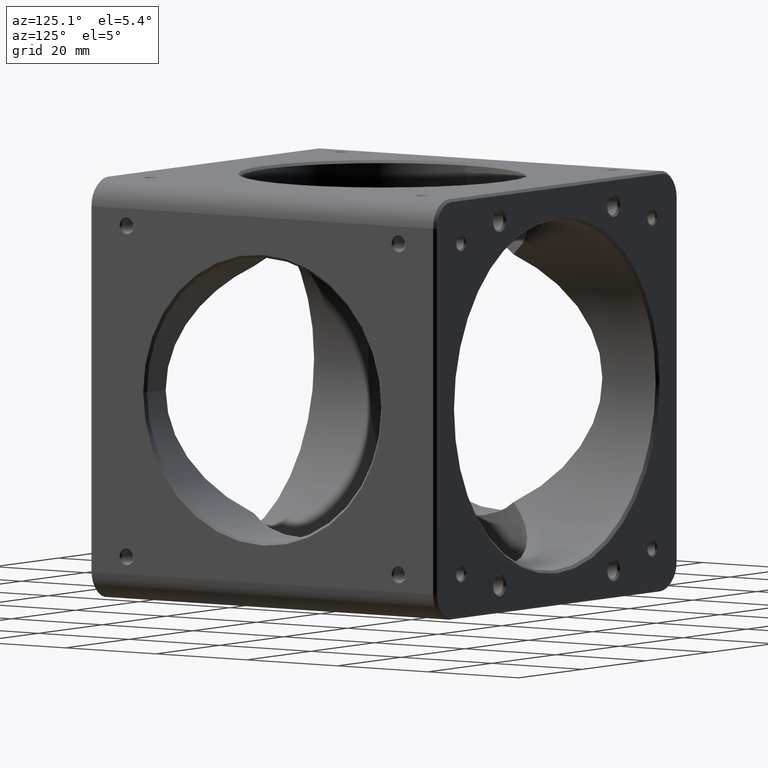
[diagram: clean part render]
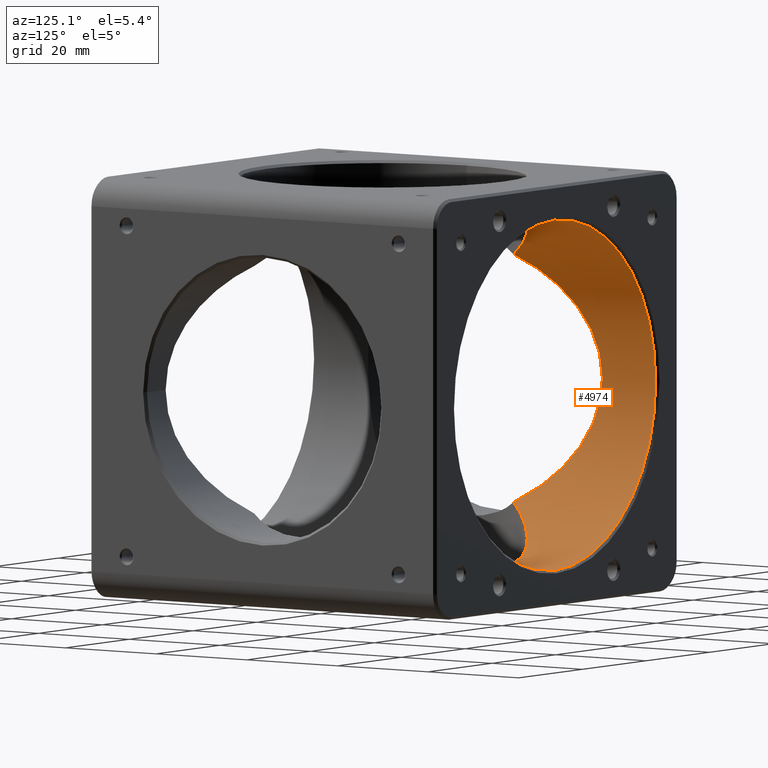
[diagram: same view with one face highlighted and labeled with its STEP entity id]
A machine part, auxiliary view. The second image highlights one B-rep face of the part: STEP entity #4974.
In plain terms, the highlighted cylindrical surface (partial cylindrical patch) has radius 31.75 mm, axis along (-0, 1, -0).
Its self-contained STEP definition (entity closure, byte-faithful):
#12 = CARTESIAN_POINT ( 'NONE',  ( -31.74557741855164750, 25.83956752821650582, -0.6113074955970804192 ) ) ;
#76 = CARTESIAN_POINT ( 'NONE',  ( -24.65065758853571865, 16.35997425321091470, 20.01515885522908533 ) ) ;
#86 = CARTESIAN_POINT ( 'NONE',  ( -17.02751218341095196, 19.47425051086229431, -26.81655745733052143 ) ) ;
#102 = CARTESIAN_POINT ( 'NONE',  ( -31.40791991316456588, 25.42377880451287808, 4.798713425435072288 ) ) ;
#133 = CARTESIAN_POINT ( 'NONE',  ( -15.73559615041370385, 20.50998984812260417, -27.58086057478472952 ) ) ;
#166 = CARTESIAN_POINT ( 'NONE',  ( -21.32005843994131666, 14.64801314957966483, 23.54215953929517013 ) ) ;
#174 = CARTESIAN_POINT ( 'NONE',  ( -9.331343820604567796, 24.10875852542507403, -30.35319228098047972 ) ) ;
#189 = CARTESIAN_POINT ( 'NONE',  ( -16.60611924818093144, 19.81176391541012549, 27.06566093436638809 ) ) ;
#232 = CARTESIAN_POINT ( 'NONE',  ( -12.49420688565798265, 22.65198967103243177, 29.20738749243578525 ) ) ;
#268 = CARTESIAN_POINT ( 'NONE',  ( -9.351178390692838960, 24.10111157733373943, 30.34711645161839044 ) ) ;
#400 = ORIENTED_EDGE ( 'NONE', *, *, #2697, .F. ) ;
#437 = CARTESIAN_POINT ( 'NONE',  ( -31.18283235845020940, 25.14509912831195848, -6.003727197645441827 ) ) ;
#449 = CARTESIAN_POINT ( 'NONE',  ( 3.890643799501251129E-15, 25.84499999999999886, -31.74999999999999289 ) ) ;
#504 = CARTESIAN_POINT ( 'NONE',  ( -23.53638018001869270, 14.63901919373566507, 21.32677605334111703 ) ) ;
#554 = CARTESIAN_POINT ( 'NONE',  ( -7.672879701568225741, 24.68679576277738619, -30.81439668890284267 ) ) ;
#568 = B_SPLINE_CURVE_WITH_KNOTS ( 'NONE', 3,
 ( #4150, #1833, #3725, #4586, #893, #4569, #5050, #2746, #4189, #3224, #5687, #4666, #5185, #2398, #6134, #5209, #2812, #3280, #437, #3762, #6113, #1954, #5664, #4263, #925, #12, #1455, #3333 ),
 .UNSPECIFIED., .F., .F.,
 ( 4, 2, 2, 2, 2, 2, 2, 2, 2, 2, 2, 2, 2, 4 ),
 ( 0.1426913864351759265, 0.1462891665683608566, 0.1498869467015457591, 0.1516858367681382103, 0.1534847268347306892, 0.1570825069679155916, 0.1588813970345080151, 0.1606802871011004663, 0.1642780672342853687, 0.1660769573008778199, 0.1678758473674702434, 0.1696747374340626946, 0.1705741824673589202, 0.1714736275006551458 ),
 .UNSPECIFIED. ) ;
#571 = CARTESIAN_POINT ( 'NONE',  ( -25.20325520636562899, 17.18132448374358390, 19.31469467918383032 ) ) ;
#628 = LINE ( 'NONE', #1238, #3141 ) ;
#663 = CARTESIAN_POINT ( 'NONE',  ( -14.40651589955395551, 21.48651068447556156, 28.31305334065573476 ) ) ;
#667 = CARTESIAN_POINT ( 'NONE',  ( 3.888253587292845687E-15, 37.59999999999992326, -31.74999999999999289 ) ) ;
#704 = CARTESIAN_POINT ( 'NONE',  ( -9.897202636066174009, 23.88191161807583285, 30.17322445336557024 ) ) ;
#715 = CARTESIAN_POINT ( 'NONE',  ( 3.890643799501251129E-15, 25.84499999999999886, -31.74999999999999289 ) ) ;
#735 = AXIS2_PLACEMENT_3D ( 'NONE', #5347, #1596, #3003 ) ;
#893 = CARTESIAN_POINT ( 'NONE',  ( -25.18910616588382823, 17.16694512655780969, -19.35021325873607267 ) ) ;
#925 = CARTESIAN_POINT ( 'NONE',  ( -31.72799318232459598, 25.81796110822155654, -1.220586381127175546 ) ) ;
#946 = VERTEX_POINT ( 'NONE', #715 ) ;
#1040 = VERTEX_POINT ( 'NONE', #1313 ) ;
#1090 = CARTESIAN_POINT ( 'NONE',  ( -17.82971391650218962, 18.74108564118768783, -26.28722904794143744 ) ) ;
#1114 = CARTESIAN_POINT ( 'NONE',  ( -8.231001871842035911, 24.50626090045814820, -30.66986904651275125 ) ) ;
#1139 = CARTESIAN_POINT ( 'NONE',  ( -11.46757694500279001, 23.19058222819290904, -29.62801371447835663 ) ) ;
#1161 = CYLINDRICAL_SURFACE ( 'NONE', #4710, 31.75000000000000000 ) ;
#1214 = CARTESIAN_POINT ( 'NONE',  ( -22.45064030267286626, 12.80362351055353543, -22.45064030267289468 ) ) ;
#1228 = CARTESIAN_POINT ( 'NONE',  ( -3.025589438624887606, 25.67442728759290560, 31.61126741895111536 ) ) ;
#1238 = CARTESIAN_POINT ( 'NONE',  ( 0.0000000000000000000, -38.10000000000000853, 31.75000000000000711 ) ) ;
#1248 = CARTESIAN_POINT ( 'NONE',  ( -22.45064030267287691, 12.80362351055357450, 22.45064030267290178 ) ) ;
#1293 = EDGE_CURVE ( 'NONE', #946, #3278, #3342, .T. ) ;
#1313 = CARTESIAN_POINT ( 'NONE',  ( -22.45064030267286626, 12.80362351055353543, -22.45064030267289468 ) ) ;
#1442 = CARTESIAN_POINT ( 'NONE',  ( -22.98493869471641204, 13.74049431155596501, 21.91634191062936665 ) ) ;
#1455 = CARTESIAN_POINT ( 'NONE',  ( -31.75000000000000711, 25.84499999999999531, -0.3048629228592948937 ) ) ;
#1596 = DIRECTION ( 'NONE',  ( 0.0000000000000000000, 1.000000000000000000, 0.0000000000000000000 ) ) ;
#1668 = DIRECTION ( 'NONE',  ( -0.0000000000000000000, 1.000000000000000000, -0.0000000000000000000 ) ) ;
#1699 = CARTESIAN_POINT ( 'NONE',  ( 4.961947715614647792E-20, 25.84499999999999886, 31.75000000000000711 ) ) ;
#1833 = CARTESIAN_POINT ( 'NONE',  ( -22.98737391121697726, 13.74476436601895024, -21.91390669412879078 ) ) ;
#1941 = CARTESIAN_POINT ( 'NONE',  ( -30.66518061214475566, 24.50039439633872718, 8.248455638101575005 ) ) ;
#1954 = CARTESIAN_POINT ( 'NONE',  ( -31.61007973371322777, 25.67296567477916369, -3.038372077861752452 ) ) ;
#1983 = CARTESIAN_POINT ( 'NONE',  ( -20.02602712237349891, 16.37332523240596061, -24.65255009712480572 ) ) ;
#2002 = CARTESIAN_POINT ( 'NONE',  ( -15.29038962417075886, 20.84412521132712470, -27.83041526865778437 ) ) ;
#2018 = B_SPLINE_CURVE_WITH_KNOTS ( 'NONE', 3,
 ( #2104, #5390, #166, #5893, #3935, #2562, #3018, #4389, #189, #3502, #663, #232, #3546, #704, #268, #3095, #5912, #5451, #4978, #1228, #2172, #4499, #2646, #1699 ),
 .UNSPECIFIED., .F., .F.,
 ( 4, 2, 2, 2, 2, 2, 2, 2, 2, 2, 2, 4 ),
 ( 0.01405118284760461730, 0.01767536608136888523, 0.02129954931513315664, 0.02311164093201528713, 0.02492373254889741763, 0.02854791578266168556, 0.03217209901642595349, 0.03398419063330808398, 0.03579628225019021448, 0.03942046548395448241, 0.04123255710083661291, 0.04304464871771874340 ),
 .UNSPECIFIED. ) ;
#2051 = CARTESIAN_POINT ( 'NONE',  ( -19.32899918866503342, 17.19060149381717650, -25.20529507321495188 ) ) ;
#2104 = CARTESIAN_POINT ( 'NONE',  ( -22.45064030267287691, 12.80362351055357450, 22.45064030267290178 ) ) ;
#2172 = CARTESIAN_POINT ( 'NONE',  ( -2.416692140556045754, 25.73890639374301870, 31.66368844166058594 ) ) ;
#2230 = ORIENTED_EDGE ( 'NONE', *, *, #1293, .T. ) ;
#2334 = ORIENTED_EDGE ( 'NONE', *, *, #5366, .F. ) ;
#2398 = CARTESIAN_POINT ( 'NONE',  ( -29.60405805035386706, 23.15878395478078744, -11.48735386586078633 ) ) ;
#2420 = CARTESIAN_POINT ( 'NONE',  ( -28.30202799875627306, 21.46975527816497475, 14.39870154176403005 ) ) ;
#2489 = ORIENTED_EDGE ( 'NONE', *, *, #4494, .F. ) ;
#2513 = EDGE_LOOP ( 'NONE', ( #2334, #2230, #3495, #2489, #400, #4786, #3238 ) ) ;
#2531 = CARTESIAN_POINT ( 'NONE',  ( -12.47423810776848718, 22.66310329660252165, -29.21600564322520555 ) ) ;
#2562 = CARTESIAN_POINT ( 'NONE',  ( -18.21984667237212108, 18.33825821235884135, 26.00601808399796866 ) ) ;
#2646 = CARTESIAN_POINT ( 'NONE',  ( -0.6030113382820280199, 25.84500000000000242, 31.75000000000001421 ) ) ;
#2697 = EDGE_CURVE ( 'NONE', #5605, #4061, #2018, .T. ) ;
#2746 = CARTESIAN_POINT ( 'NONE',  ( -26.80500198953824764, 19.45444821540877101, -17.02317859568271530 ) ) ;
#2764 = DIRECTION ( 'NONE',  ( -0.0000000000000000000, 1.000000000000000000, -0.0000000000000000000 ) ) ;
#2812 = CARTESIAN_POINT ( 'NONE',  ( -30.67443486768114624, 24.51244851248882384, -8.275898834087531242 ) ) ;
#2875 = CARTESIAN_POINT ( 'NONE',  ( -26.28841525642800292, 18.74274399652230727, 17.82795871582191083 ) ) ;
#2914 = CARTESIAN_POINT ( 'NONE',  ( -25.47714876875394907, 17.58020682732187012, 18.95233462615201603 ) ) ;
#2933 = CARTESIAN_POINT ( 'NONE',  ( -31.20692299350272947, 25.17562023141345762, 5.964542473830189095 ) ) ;
#2973 = CARTESIAN_POINT ( 'NONE',  ( 0.0000000000000000000, 37.59999999999992326, 31.75000000000000711 ) ) ;
#3003 = DIRECTION ( 'NONE',  ( 0.0000000000000000000, 0.0000000000000000000, -1.000000000000000000 ) ) ;
#3018 = CARTESIAN_POINT ( 'NONE',  ( -17.83158714638664222, 18.71620872484151832, 26.27412260873524730 ) ) ;
#3026 = DIRECTION ( 'NONE',  ( -0.0000000000000000000, 1.000000000000000000, -0.0000000000000000000 ) ) ;
#3095 = CARTESIAN_POINT ( 'NONE',  ( -8.248086653162880921, 24.50055475126160687, 30.66530744643798201 ) ) ;
#3141 = VECTOR ( 'NONE', #1668, 1000.000000000000000 ) ;
#3184 = DIRECTION ( 'NONE',  ( 0.0000000000000000000, 0.0000000000000000000, 1.000000000000000000 ) ) ;
#3199 = CARTESIAN_POINT ( 'NONE',  ( 0.0000000000000000000, -38.10000000000000853, 6.938893903907228378E-15 ) ) ;
#3224 = CARTESIAN_POINT ( 'NONE',  ( -27.82534590997393664, 20.84146183884763204, -15.32325430562022106 ) ) ;
#3238 = ORIENTED_EDGE ( 'NONE', *, *, #4998, .F. ) ;
#3278 = VERTEX_POINT ( 'NONE', #667 ) ;
#3280 = CARTESIAN_POINT ( 'NONE',  ( -31.06644955921520079, 25.00070451750736211, -6.578407921043935680 ) ) ;
#3333 = CARTESIAN_POINT ( 'NONE',  ( -31.75000000000000000, 25.84499999999998465, 0.0000000000000000000 ) ) ;
#3338 = CARTESIAN_POINT ( 'NONE',  ( -29.21529975740237717, 22.66226005122281606, 12.47675470723141977 ) ) ;
#3342 = LINE ( 'NONE', #4740, #3732 ) ;
#3385 = CARTESIAN_POINT ( 'NONE',  ( -24.37111084454143750, 15.93618870028122281, 20.35421266974014287 ) ) ;
#3407 = CARTESIAN_POINT ( 'NONE',  ( -27.57325328252251140, 20.49973758833558080, 15.74878060295307591 ) ) ;
#3460 = CARTESIAN_POINT ( 'NONE',  ( -20.99704424490763799, 15.07909271459779177, -23.81949842307164644 ) ) ;
#3495 = ORIENTED_EDGE ( 'NONE', *, *, #4893, .T. ) ;
#3502 = CARTESIAN_POINT ( 'NONE',  ( -15.31357399152989807, 20.84895969359013179, 27.83091347407599869 ) ) ;
#3527 = CIRCLE ( 'NONE', #735, 31.75000000000000000 ) ;
#3546 = CARTESIAN_POINT ( 'NONE',  ( -11.48904380758748722, 23.17997169107630029, 29.61970202614241288 ) ) ;
#3725 = CARTESIAN_POINT ( 'NONE',  ( -23.53702289668455805, 14.63974223041835465, -21.32568318022507015 ) ) ;
#3732 = VECTOR ( 'NONE', #3026, 1000.000000000000000 ) ;
#3762 = CARTESIAN_POINT ( 'NONE',  ( -31.38517527013375741, 25.39559416541459669, -4.835757171523686893 ) ) ;
#3777 = CARTESIAN_POINT ( 'NONE',  ( -1.201813558092643675, 25.84500000000000597, -31.75000000000000000 ) ) ;
#3801 = VERTEX_POINT ( 'NONE', #3811 ) ;
#3811 = CARTESIAN_POINT ( 'NONE',  ( -31.75000000000000000, 25.84499999999998465, 0.0000000000000000000 ) ) ;
#3855 = CARTESIAN_POINT ( 'NONE',  ( -31.75000000000000000, 25.84499999999998465, 0.0000000000000000000 ) ) ;
#3935 = CARTESIAN_POINT ( 'NONE',  ( -19.34288749091300375, 17.17494502539863888, 25.19460975910912381 ) ) ;
#3940 = CARTESIAN_POINT ( 'NONE',  ( -21.30896191997118905, 14.63502478706890919, -23.54048222627065812 ) ) ;
#4061 = VERTEX_POINT ( 'NONE', #4170 ) ;
#4150 = CARTESIAN_POINT ( 'NONE',  ( -22.45064030267286626, 12.80362351055353543, -22.45064030267289468 ) ) ;
#4170 = CARTESIAN_POINT ( 'NONE',  ( 4.961947715614647792E-20, 25.84499999999999886, 31.75000000000000711 ) ) ;
#4189 = CARTESIAN_POINT ( 'NONE',  ( -27.06500120650670738, 19.81084546910653899, -16.60709438983511887 ) ) ;
#4245 = CARTESIAN_POINT ( 'NONE',  ( -31.75000000000000000, 25.84499999999998820, 1.224676417933895589 ) ) ;
#4263 = CARTESIAN_POINT ( 'NONE',  ( -31.71483148227369853, 25.80178709859464803, -1.524552251522689694 ) ) ;
#4353 = CARTESIAN_POINT ( 'NONE',  ( -14.37921245456875496, 21.48282616116433630, -28.31194585455517654 ) ) ;
#4389 = CARTESIAN_POINT ( 'NONE',  ( -17.02547200056618593, 19.45238474709340082, 26.80351324315472539 ) ) ;
#4396 = CARTESIAN_POINT ( 'NONE',  ( -21.90184113629728913, 13.73190312612568320, -22.98990031280135327 ) ) ;
#4442 = CARTESIAN_POINT ( 'NONE',  ( -22.18343876235054779, 13.27215069468640785, -22.71784184299520248 ) ) ;
#4494 = EDGE_CURVE ( 'NONE', #4061, #5869, #628, .T. ) ;
#4499 = CARTESIAN_POINT ( 'NONE',  ( -1.206946209193123565, 25.82392270930590072, 31.73283547811145411 ) ) ;
#4569 = CARTESIAN_POINT ( 'NONE',  ( -26.00364790434512940, 18.33491428855539240, -18.22327155906781471 ) ) ;
#4586 = CARTESIAN_POINT ( 'NONE',  ( -24.63779543599862265, 16.35088895687803046, -20.04383311635460174 ) ) ;
#4666 = CARTESIAN_POINT ( 'NONE',  ( -28.97706381268278975, 22.35188379087410837, -12.98731663105711576 ) ) ;
#4710 = AXIS2_PLACEMENT_3D ( 'NONE', #3199, #2764, #3184 ) ;
#4714 = CARTESIAN_POINT ( 'NONE',  ( -22.45064030267287691, 12.80362351055357450, 22.45064030267290178 ) ) ;
#4740 = CARTESIAN_POINT ( 'NONE',  ( 3.888253587292845687E-15, -38.10000000000000853, -31.74999999999999289 ) ) ;
#4751 = CARTESIAN_POINT ( 'NONE',  ( -29.62765759043373492, 23.19010573124798569, 11.46773560243410373 ) ) ;
#4781 = CARTESIAN_POINT ( 'NONE',  ( -30.17652313010645670, 23.88607166016355876, 9.886915106036852308 ) ) ;
#4786 = ORIENTED_EDGE ( 'NONE', *, *, #5413, .F. ) ;
#4792 = CARTESIAN_POINT ( 'NONE',  ( -13.91203883699101240, 21.78838936219238676, -28.54465713450804287 ) ) ;
#4804 = CARTESIAN_POINT ( 'NONE',  ( -31.67942781422959797, 25.75844021026941988, 2.428772771221066051 ) ) ;
#4893 = EDGE_CURVE ( 'NONE', #3278, #5869, #3527, .T. ) ;
#4974 = ADVANCED_FACE ( 'NONE', ( #5879 ), #1161, .F. ) ;
#4978 = CARTESIAN_POINT ( 'NONE',  ( -4.823527408755972523, 25.41973918680195510, 31.40464552373124718 ) ) ;
#4998 = EDGE_CURVE ( 'NONE', #1040, #3801, #568, .T. ) ;
#5050 = CARTESIAN_POINT ( 'NONE',  ( -26.27367877284450870, 18.71559830637246336, -17.83228939034581373 ) ) ;
#5185 = CARTESIAN_POINT ( 'NONE',  ( -29.19234530911510106, 22.63011369529780126, -12.49666064361249518 ) ) ;
#5191 = B_SPLINE_CURVE_WITH_KNOTS ( 'NONE', 3,
 ( #449, #3777, #5746, #5348, #5789, #554, #1114, #174, #5304, #1139, #2531, #4792, #4353, #2002, #133, #86, #1090, #2051, #1983, #3460, #3940, #4396, #4442, #1214 ),
 .UNSPECIFIED., .F., .F.,
 ( 4, 2, 2, 2, 2, 2, 2, 2, 2, 2, 2, 4 ),
 ( 0.1290527732953890006, 0.1326625084167538104, 0.1362722435381186481, 0.1380771110988010530, 0.1398819786594834580, 0.1434917137808482679, 0.1452965813415307006, 0.1471014489022131055, 0.1507111840235779154, 0.1543209191449427253, 0.1561257867056251303, 0.1579306542663075352 ),
 .UNSPECIFIED. ) ;
#5193 = CARTESIAN_POINT ( 'NONE',  ( -30.81147438359403878, 24.68315316707647611, 7.685172328598835811 ) ) ;
#5209 = CARTESIAN_POINT ( 'NONE',  ( -30.35605748890128908, 24.11379323212142012, -9.372269175873704228 ) ) ;
#5232 = B_SPLINE_CURVE_WITH_KNOTS ( 'NONE', 3,
 ( #3855, #4245, #4804, #102, #2933, #5193, #1941, #5763, #4781, #4751, #3338, #5252, #2420, #5695, #3407, #5741, #2875, #2914, #571, #76, #3385, #504, #1442, #4714 ),
 .UNSPECIFIED., .F., .F.,
 ( 4, 2, 2, 2, 2, 2, 2, 2, 2, 2, 2, 4 ),
 ( 0.0000000000000000000, 0.003613194780048903203, 0.007226389560097806405, 0.009032986950122258440, 0.01083958434014670874, 0.01445277912019561455, 0.01625937651022007352, 0.01806597390024453076, 0.02167916868029345565, 0.02348576607031791982, 0.02529236346034237706, 0.02890555824039128807 ),
 .UNSPECIFIED. ) ;
#5252 = CARTESIAN_POINT ( 'NONE',  ( -28.53693818947687433, 21.77829326780719654, 13.92805875758719480 ) ) ;
#5304 = CARTESIAN_POINT ( 'NONE',  ( -9.875563726491773053, 23.89086365333060868, -30.18031221670376496 ) ) ;
#5347 = CARTESIAN_POINT ( 'NONE',  ( 0.0000000000000000000, 37.59999999999992326, 6.938893903907228378E-15 ) ) ;
#5348 = CARTESIAN_POINT ( 'NONE',  ( -4.808690393025221610, 25.42267366941647921, -31.40702168441340092 ) ) ;
#5366 = EDGE_CURVE ( 'NONE', #946, #1040, #5191, .T. ) ;
#5390 = CARTESIAN_POINT ( 'NONE',  ( -21.91072076717521000, 13.75035076115207566, 22.99055983817058291 ) ) ;
#5413 = EDGE_CURVE ( 'NONE', #3801, #5605, #5232, .T. ) ;
#5451 = CARTESIAN_POINT ( 'NONE',  ( -5.988274261424591849, 25.16934086708507934, 31.20186959097119583 ) ) ;
#5605 = VERTEX_POINT ( 'NONE', #1248 ) ;
#5664 = CARTESIAN_POINT ( 'NONE',  ( -31.66236180193077132, 25.73727464214328364, -2.434445971920906615 ) ) ;
#5687 = CARTESIAN_POINT ( 'NONE',  ( -28.30610231338615890, 21.47735505972951486, -14.42010935265777505 ) ) ;
#5695 = CARTESIAN_POINT ( 'NONE',  ( -27.82046359999598550, 20.83083766392053349, 15.30846824514066107 ) ) ;
#5741 = CARTESIAN_POINT ( 'NONE',  ( -26.81536996238916970, 19.47252602139041500, 17.02885733185155104 ) ) ;
#5746 = CARTESIAN_POINT ( 'NONE',  ( -2.406074276222359032, 25.76134015098818963, -31.68178216196947972 ) ) ;
#5763 = CARTESIAN_POINT ( 'NONE',  ( -30.34784514566031177, 24.10202747873434248, 9.348722768603741073 ) ) ;
#5789 = CARTESIAN_POINT ( 'NONE',  ( -5.973938193027748866, 25.17268081188750273, -31.20456805227563279 ) ) ;
#5869 = VERTEX_POINT ( 'NONE', #2973 ) ;
#5879 = FACE_OUTER_BOUND ( 'NONE', #2513, .T. ) ;
#5893 = CARTESIAN_POINT ( 'NONE',  ( -20.03614703817829934, 16.36037875408973008, 24.64408609627548685 ) ) ;
#5912 = CARTESIAN_POINT ( 'NONE',  ( -7.688962224019891600, 24.68180839699524398, 30.81040016890560551 ) ) ;
#6113 = CARTESIAN_POINT ( 'NONE',  ( -31.47131118450240095, 25.50191078014481860, -4.240921831801783171 ) ) ;
#6134 = CARTESIAN_POINT ( 'NONE',  ( -29.80108422584668659, 23.40997574174339135, -10.96698080182598112 ) ) ;